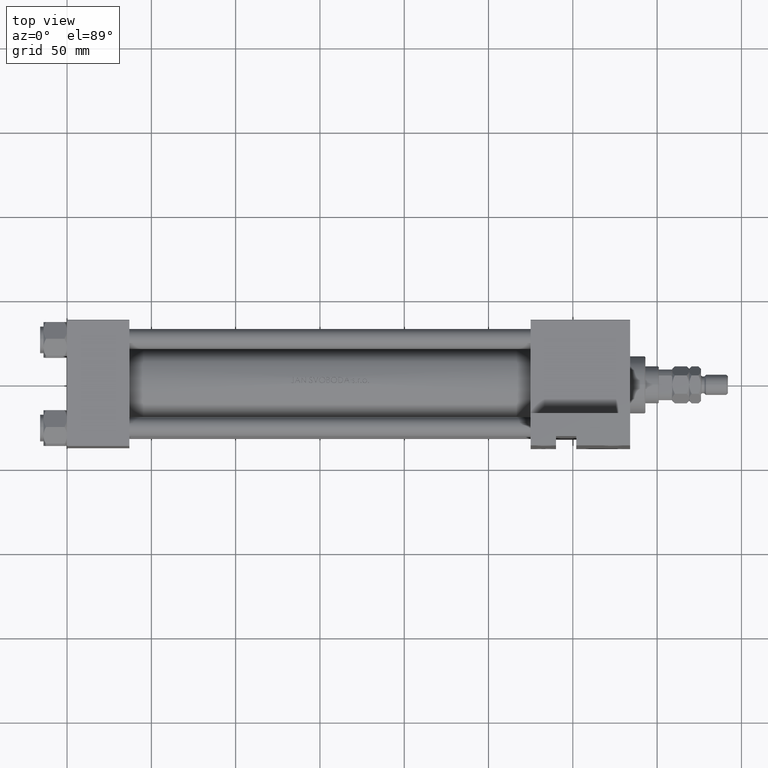
[diagram: clean part render]
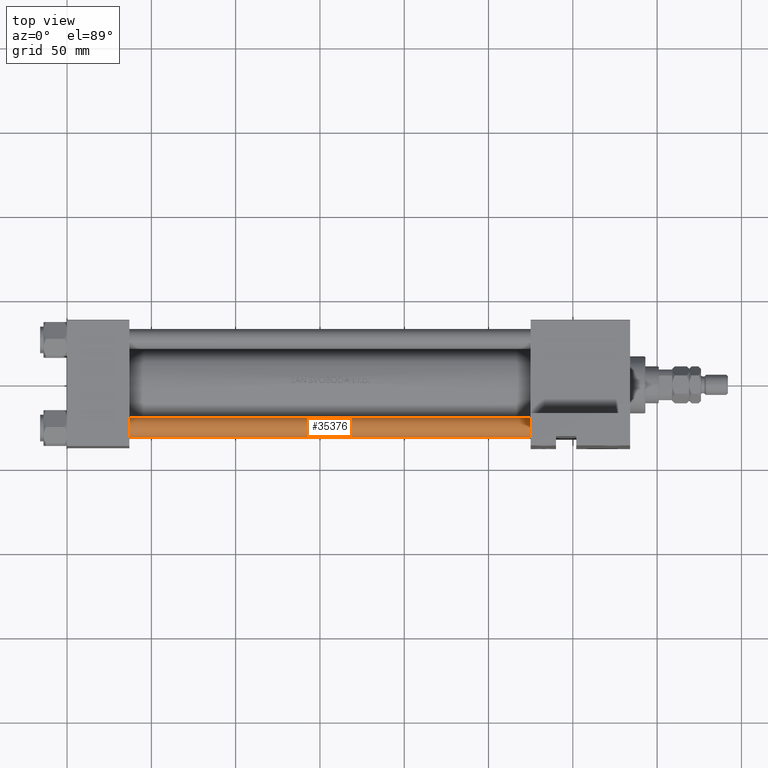
[diagram: same view with one face highlighted and labeled with its STEP entity id]
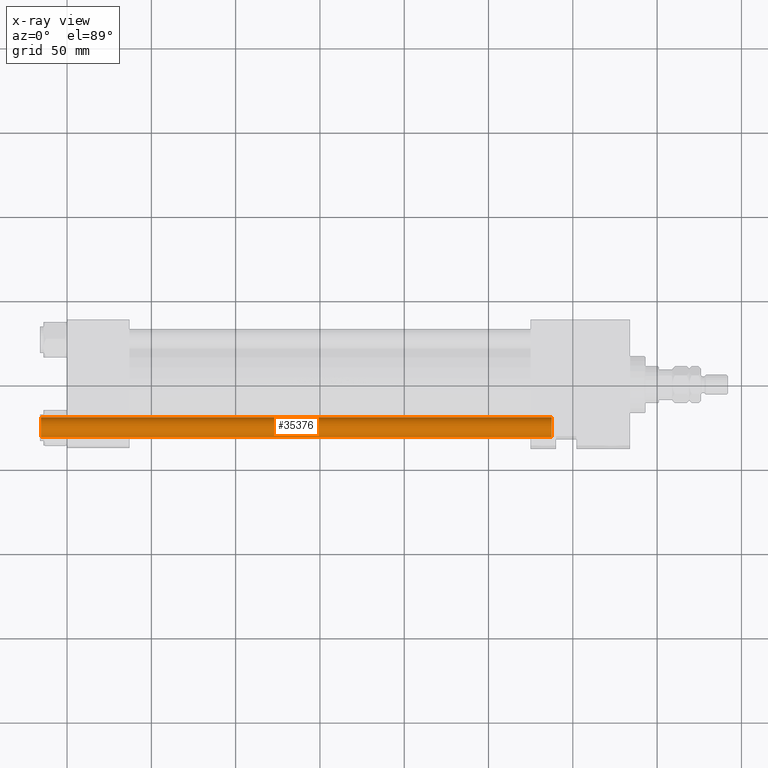
[diagram: x-ray of the same camera — body ghosted, the highlighted face saturated]
A machine part, top view. The second image highlights one B-rep face of the part: STEP entity #35376.
The next image is the same camera in x-ray: the body ghosted, the highlighted face saturated — about 0% of this face is hidden behind the body in this view.
In plain terms, the highlighted cylindrical surface (edge-blend (fillet) strip) has radius 6 mm, axis along (-1, 0, 0).
Its self-contained STEP definition (entity closure, byte-faithful):
#1230 = CIRCLE ( 'NONE', #17136, 6.000000000000000888 ) ;
#1759 = CARTESIAN_POINT ( 'NONE',  ( 6.000000000000000888, 7.347880794884120722E-16, 0.4999999999999449329 ) ) ;
#1835 = VERTEX_POINT ( 'NONE', #23156 ) ;
#3181 = EDGE_LOOP ( 'NONE', ( #41210, #48931, #8118, #27016 ) ) ;
#5608 = CARTESIAN_POINT ( 'NONE',  ( -6.000000000000000888, 0.000000000000000000, 304.0000000000000000 ) ) ;
#8118 = ORIENTED_EDGE ( 'NONE', *, *, #14355, .T. ) ;
#8737 = FACE_OUTER_BOUND ( 'NONE', #3181, .T. ) ;
#14355 = EDGE_CURVE ( 'NONE', #1835, #30058, #34041, .T. ) ;
#14779 = AXIS2_PLACEMENT_3D ( 'NONE', #31362, #42815, #35603 ) ;
#16097 = EDGE_CURVE ( 'NONE', #34842, #23646, #19296, .T. ) ;
#17136 = AXIS2_PLACEMENT_3D ( 'NONE', #42725, #38977, #20814 ) ;
#19296 = LINE ( 'NONE', #37966, #28709 ) ;
#19553 = DIRECTION ( 'NONE',  ( -0.000000000000000000, -0.000000000000000000, -1.000000000000000000 ) ) ;
#20814 = DIRECTION ( 'NONE',  ( 1.000000000000000000, 0.000000000000000000, 0.000000000000000000 ) ) ;
#23156 = CARTESIAN_POINT ( 'NONE',  ( -6.000000000000000888, 0.000000000000000000, 303.5000000000000000 ) ) ;
#23646 = VERTEX_POINT ( 'NONE', #1759 ) ;
#25157 = CIRCLE ( 'NONE', #31505, 6.000000000000000888 ) ;
#25317 = CYLINDRICAL_SURFACE ( 'NONE', #14779, 6.000000000000000888 ) ;
#27016 = ORIENTED_EDGE ( 'NONE', *, *, #33562, .T. ) ;
#27980 = DIRECTION ( 'NONE',  ( -0.000000000000000000, -0.000000000000000000, -1.000000000000000000 ) ) ;
#28709 = VECTOR ( 'NONE', #19553, 1000.000000000000000 ) ;
#30058 = VERTEX_POINT ( 'NONE', #31485 ) ;
#30272 = CARTESIAN_POINT ( 'NONE',  ( 0.000000000000000000, 0.000000000000000000, 303.5000000000000000 ) ) ;
#31362 = CARTESIAN_POINT ( 'NONE',  ( 0.000000000000000000, 0.000000000000000000, 304.0000000000000000 ) ) ;
#31485 = CARTESIAN_POINT ( 'NONE',  ( -6.000000000000000888, 0.000000000000000000, 0.4999999999999449329 ) ) ;
#31505 = AXIS2_PLACEMENT_3D ( 'NONE', #30272, #42465, #34259 ) ;
#33562 = EDGE_CURVE ( 'NONE', #30058, #23646, #1230, .T. ) ;
#34041 = LINE ( 'NONE', #5608, #34837 ) ;
#34107 = CARTESIAN_POINT ( 'NONE',  ( 6.000000000000000888, 7.347880794884120722E-16, 303.5000000000000000 ) ) ;
#34259 = DIRECTION ( 'NONE',  ( 1.000000000000000000, 0.000000000000000000, 0.000000000000000000 ) ) ;
#34837 = VECTOR ( 'NONE', #27980, 1000.000000000000000 ) ;
#34842 = VERTEX_POINT ( 'NONE', #34107 ) ;
#35376 = ADVANCED_FACE ( 'NONE', ( #8737 ), #25317, .T. ) ;
#35603 = DIRECTION ( 'NONE',  ( -1.000000000000000000, 0.000000000000000000, 0.000000000000000000 ) ) ;
#37966 = CARTESIAN_POINT ( 'NONE',  ( 6.000000000000000888, 7.347880794884120722E-16, 304.0000000000000000 ) ) ;
#38977 = DIRECTION ( 'NONE',  ( -0.000000000000000000, -0.000000000000000000, 1.000000000000000000 ) ) ;
#39853 = EDGE_CURVE ( 'NONE', #34842, #1835, #25157, .T. ) ;
#41210 = ORIENTED_EDGE ( 'NONE', *, *, #16097, .F. ) ;
#42465 = DIRECTION ( 'NONE',  ( 0.000000000000000000, 0.000000000000000000, -1.000000000000000000 ) ) ;
#42725 = CARTESIAN_POINT ( 'NONE',  ( 0.000000000000000000, 0.000000000000000000, 0.4999999999999449329 ) ) ;
#42815 = DIRECTION ( 'NONE',  ( -0.000000000000000000, -0.000000000000000000, -1.000000000000000000 ) ) ;
#48931 = ORIENTED_EDGE ( 'NONE', *, *, #39853, .T. ) ;